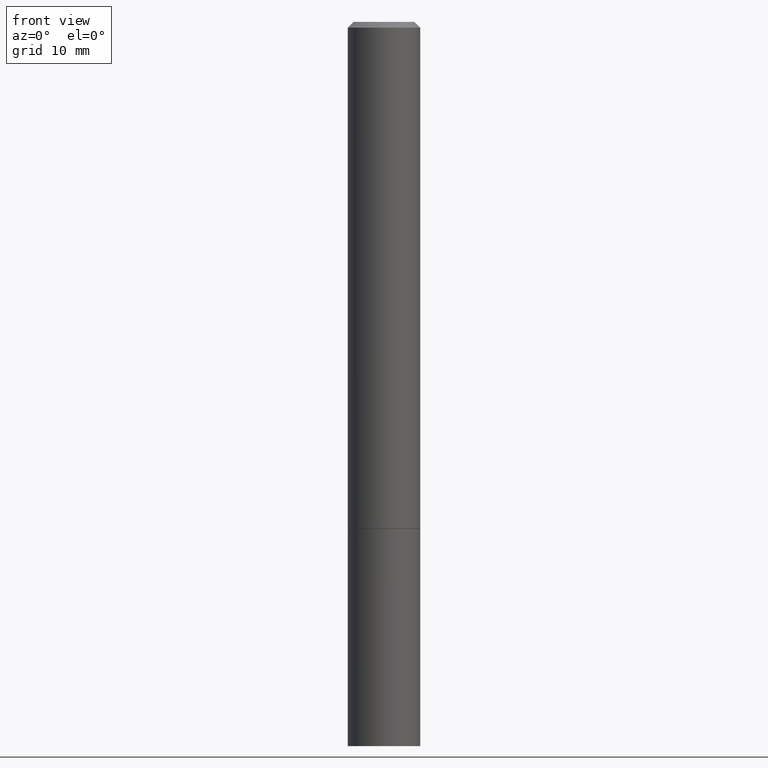
[diagram: clean part render]
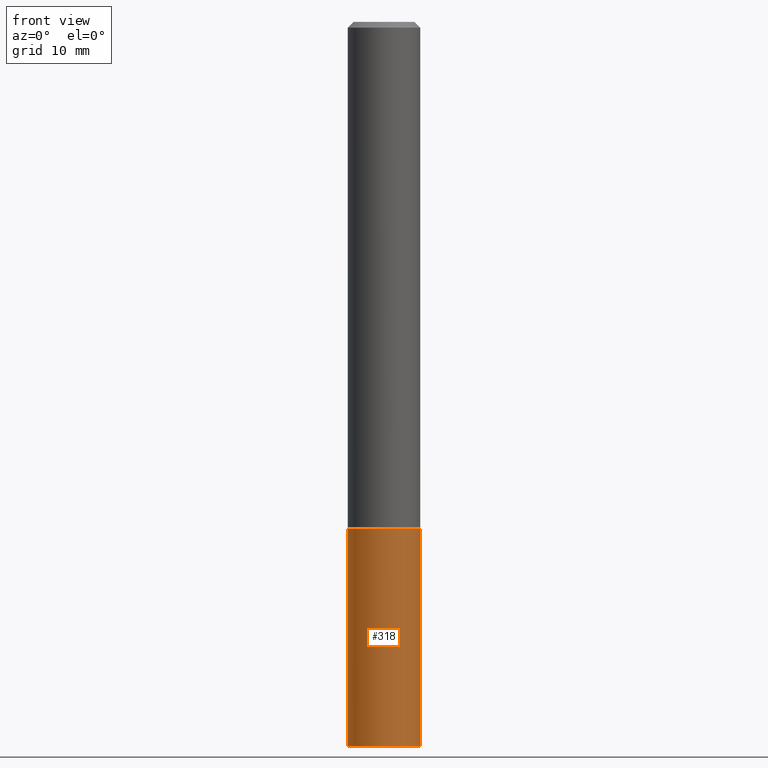
[diagram: same view with one face highlighted and labeled with its STEP entity id]
A machine part, front view. The second image highlights one B-rep face of the part: STEP entity #318.
In plain terms, the highlighted cylindrical surface (edge-blend (fillet) strip) has radius 3.175 mm, axis along (-0, 0, 1).
Its self-contained STEP definition (entity closure, byte-faithful):
#5 = DIRECTION ( 'NONE',  ( -2.445468806185136877E-29, 3.491481338843145188E-15, 1.000000000000000000 ) ) ;
#30 = VERTEX_POINT ( 'NONE', #317 ) ;
#37 = VECTOR ( 'NONE', #5, 39.37007874015748143 ) ;
#39 = AXIS2_PLACEMENT_3D ( 'NONE', #351, #298, #138 ) ;
#42 = VERTEX_POINT ( 'NONE', #157 ) ;
#57 = EDGE_CURVE ( 'NONE', #111, #30, #99, .T. ) ;
#75 = CIRCLE ( 'NONE', #120, 0.1250000000000000000 ) ;
#93 = CARTESIAN_POINT ( 'NONE',  ( 0.1250000000000000000, -8.728703347107833388E-16, 6.095220969744919741E-30 ) ) ;
#99 = LINE ( 'NONE', #237, #37 ) ;
#100 = DIRECTION ( 'NONE',  ( -2.445468806185136597E-29, 3.491481338843145583E-15, 1.000000000000000000 ) ) ;
#111 = VERTEX_POINT ( 'NONE', #160 ) ;
#114 = ORIENTED_EDGE ( 'NONE', *, *, #297, .T. ) ;
#120 = AXIS2_PLACEMENT_3D ( 'NONE', #326, #245, #186 ) ;
#127 = DIRECTION ( 'NONE',  ( -2.445468806185136877E-29, 3.491481338843145188E-15, 1.000000000000000000 ) ) ;
#136 = CARTESIAN_POINT ( 'NONE',  ( 6.113672015462842613E-29, -8.728703347107864943E-15, -2.500000000000000000 ) ) ;
#138 = DIRECTION ( 'NONE',  ( 1.000000000000000000, -6.982962677686266711E-15, 4.876176775795935793E-29 ) ) ;
#139 = CIRCLE ( 'NONE', #321, 0.1250000000000000000 ) ;
#155 = VECTOR ( 'NONE', #127, 39.37007874015748143 ) ;
#157 = CARTESIAN_POINT ( 'NONE',  ( 0.1250000000000000000, -6.982962677686288010E-15, -1.750000000000000222 ) ) ;
#160 = CARTESIAN_POINT ( 'NONE',  ( -0.1250000000000000000, -6.531219425341559180E-15, -2.500000000000000000 ) ) ;
#161 = EDGE_CURVE ( 'NONE', #361, #42, #204, .T. ) ;
#186 = DIRECTION ( 'NONE',  ( 1.000000000000000000, -6.982962677686262766E-15, 0.000000000000000000 ) ) ;
#204 = LINE ( 'NONE', #93, #155 ) ;
#237 = CARTESIAN_POINT ( 'NONE',  ( -0.1250000000000000000, 8.881784197001252323E-16, -6.148668862818632227E-30 ) ) ;
#239 = FACE_OUTER_BOUND ( 'NONE', #294, .T. ) ;
#245 = DIRECTION ( 'NONE',  ( -2.445468806185136597E-29, 3.491481338843145583E-15, 1.000000000000000000 ) ) ;
#248 = ORIENTED_EDGE ( 'NONE', *, *, #312, .F. ) ;
#284 = ORIENTED_EDGE ( 'NONE', *, *, #161, .T. ) ;
#294 = EDGE_LOOP ( 'NONE', ( #336, #114, #284, #248 ) ) ;
#297 = EDGE_CURVE ( 'NONE', #111, #361, #139, .T. ) ;
#298 = DIRECTION ( 'NONE',  ( -2.445468806185136597E-29, 3.491481338843145583E-15, 1.000000000000000000 ) ) ;
#299 = CARTESIAN_POINT ( 'NONE',  ( 0.1250000000000000000, -9.601573681818648281E-15, -2.500000000000000000 ) ) ;
#300 = DIRECTION ( 'NONE',  ( 1.000000000000000000, -6.982962677686270655E-15, 0.000000000000000000 ) ) ;
#312 = EDGE_CURVE ( 'NONE', #30, #42, #75, .T. ) ;
#317 = CARTESIAN_POINT ( 'NONE',  ( -0.1250000000000000000, -6.531219425341559180E-15, -1.750000000000000222 ) ) ;
#318 = ADVANCED_FACE ( 'NONE', ( #239 ), #332, .T. ) ;
#321 = AXIS2_PLACEMENT_3D ( 'NONE', #136, #100, #300 ) ;
#326 = CARTESIAN_POINT ( 'NONE',  ( 4.279570410823989044E-29, -6.110092342975505460E-15, -1.750000000000000222 ) ) ;
#332 = CYLINDRICAL_SURFACE ( 'NONE', #39, 0.1250000000000000000 ) ;
#336 = ORIENTED_EDGE ( 'NONE', *, *, #57, .F. ) ;
#351 = CARTESIAN_POINT ( 'NONE',  ( 0.000000000000000000, 0.000000000000000000, 0.000000000000000000 ) ) ;
#361 = VERTEX_POINT ( 'NONE', #299 ) ;